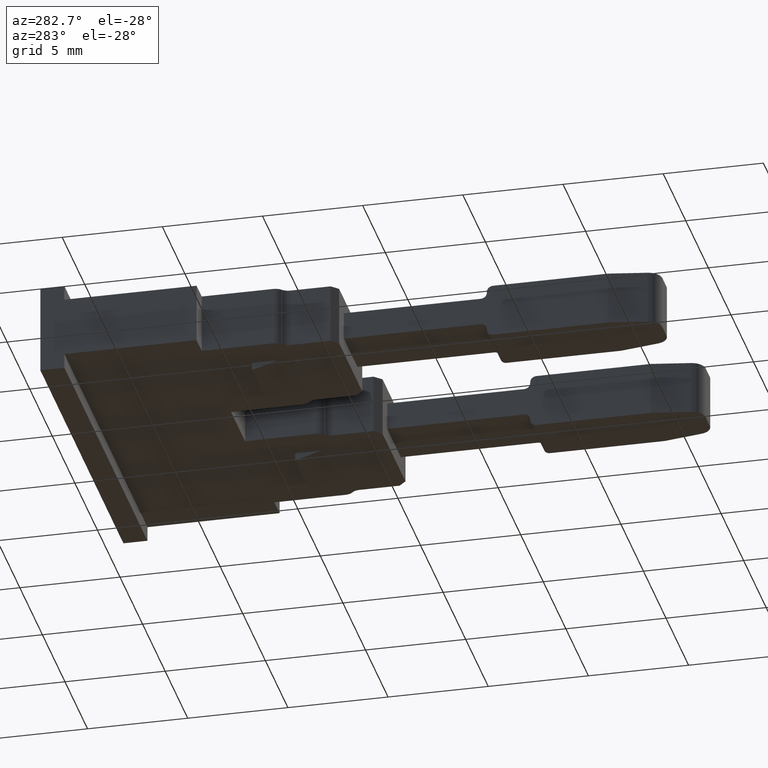
[diagram: clean part render]
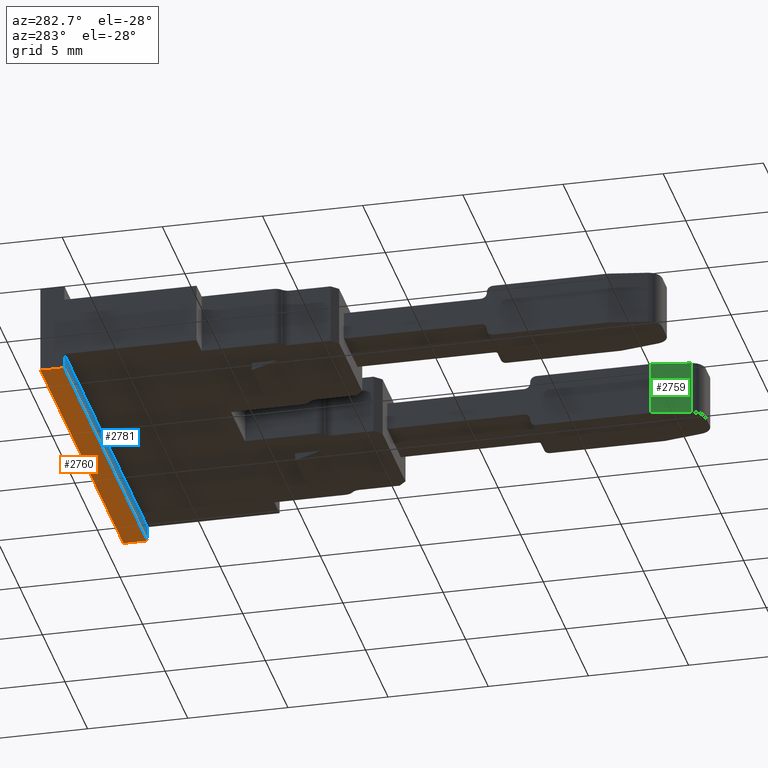
[diagram: same view with three faces highlighted in distinct colors, each labeled with its STEP entity id]
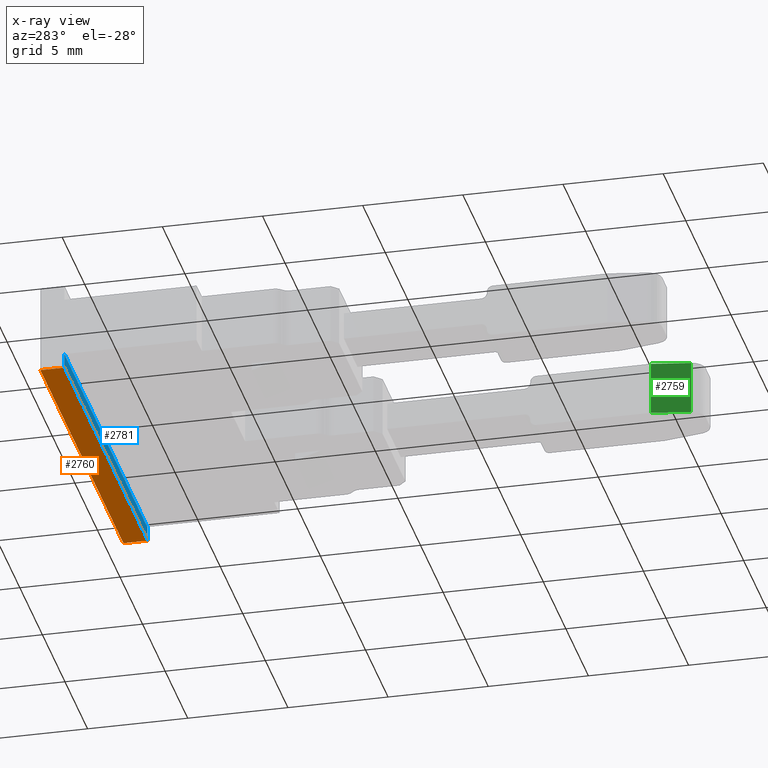
[diagram: x-ray of the same camera — body ghosted, the three highlighted faces saturated]
A machine part, auxiliary view with three faces highlighted in distinct colors.
The next image is the same camera in x-ray (body ghosted, the three faces saturated) — at least one of them is partly hidden behind the body in this view.
Their STEP definitions:

[orange] entity #2760 — the highlighted planar face has unit normal (0, 0, 1).
#22 = VECTOR ( 'NONE', #1079, 1000.000000000000000 ) ;
#32 = VECTOR ( 'NONE', #1054, 1000.000000000000000 ) ;
#34 = VECTOR ( 'NONE', #1126, 1000.000000000000000 ) ;
#78 = VECTOR ( 'NONE', #1228, 1000.000000000000000 ) ;
#244 = AXIS2_PLACEMENT_3D ( 'NONE', #701, #679, #688 ) ;
#679 = DIRECTION ( 'NONE',  ( 0.0000000000000000000, 0.0000000000000000000, 1.000000000000000000 ) ) ;
#681 = PLANE ( 'NONE',  #244 ) ;
#688 = DIRECTION ( 'NONE',  ( 1.000000000000000000, 0.0000000000000000000, -0.0000000000000000000 ) ) ;
#701 = CARTESIAN_POINT ( 'NONE',  ( 1139.194470802330000, 673.0878760720547700, -0.7499999999999997800 ) ) ;
#727 = FACE_OUTER_BOUND ( 'NONE', #2500, .T. ) ;
#1054 = DIRECTION ( 'NONE',  ( 1.000000000000000000, 0.0000000000000000000, 0.0000000000000000000 ) ) ;
#1068 = LINE ( 'NONE', #1088, #32 ) ;
#1071 = LINE ( 'NONE', #1077, #22 ) ;
#1077 = CARTESIAN_POINT ( 'NONE',  ( 1139.194470802330000, 673.0878760720547700, -0.7499999999999997800 ) ) ;
#1079 = DIRECTION ( 'NONE',  ( 0.0000000000000000000, -1.000000000000000000, -0.0000000000000000000 ) ) ;
#1082 = LINE ( 'NONE', #1135, #34 ) ;
#1088 = CARTESIAN_POINT ( 'NONE',  ( 1139.194470802330000, 674.2878760720548100, -0.7499999999999997800 ) ) ;
#1126 = DIRECTION ( 'NONE',  ( -0.0000000000000000000, 1.000000000000000000, 0.0000000000000000000 ) ) ;
#1135 = CARTESIAN_POINT ( 'NONE',  ( 1157.594465032600300, 673.0878760720547700, -0.7499999999999997800 ) ) ;
#1201 = CARTESIAN_POINT ( 'NONE',  ( 1139.194470802330000, 673.0878760720547700, -0.7499999999999997800 ) ) ;
#1227 = LINE ( 'NONE', #1201, #78 ) ;
#1228 = DIRECTION ( 'NONE',  ( 1.000000000000000000, 0.0000000000000000000, 0.0000000000000000000 ) ) ;
#1704 = VERTEX_POINT ( 'NONE', #2491 ) ;
#1715 = VERTEX_POINT ( 'NONE', #2380 ) ;
#1745 = VERTEX_POINT ( 'NONE', #2388 ) ;
#1751 = VERTEX_POINT ( 'NONE', #2360 ) ;
#1934 = ORIENTED_EDGE ( 'NONE', *, *, #2565, .F. ) ;
#1954 = ORIENTED_EDGE ( 'NONE', *, *, #2554, .T. ) ;
#1963 = ORIENTED_EDGE ( 'NONE', *, *, #2558, .F. ) ;
#1966 = ORIENTED_EDGE ( 'NONE', *, *, #2593, .F. ) ;
#2360 = CARTESIAN_POINT ( 'NONE',  ( 1157.594465032600300, 674.2878760720548100, -0.7499999999999997800 ) ) ;
#2380 = CARTESIAN_POINT ( 'NONE',  ( 1139.194470802330000, 673.0878760720547700, -0.7499999999999997800 ) ) ;
#2388 = CARTESIAN_POINT ( 'NONE',  ( 1139.194470802330000, 674.2878760720548100, -0.7499999999999997800 ) ) ;
#2491 = CARTESIAN_POINT ( 'NONE',  ( 1157.594465032600300, 673.0878760720547700, -0.7499999999999997800 ) ) ;
#2500 = EDGE_LOOP ( 'NONE', ( #1954, #1934, #1966, #1963 ) ) ;
#2554 = EDGE_CURVE ( 'NONE', #1745, #1751, #1068, .T. ) ;
#2558 = EDGE_CURVE ( 'NONE', #1745, #1715, #1071, .T. ) ;
#2565 = EDGE_CURVE ( 'NONE', #1704, #1751, #1082, .T. ) ;
#2593 = EDGE_CURVE ( 'NONE', #1715, #1704, #1227, .T. ) ;
#2760 = ADVANCED_FACE ( 'NONE', ( #727 ), #681, .F. ) ;

[blue] entity #2781 — the highlighted planar face has unit normal (0, -1, 0).
#3 = VECTOR ( 'NONE', #1108, 1000.000000000000000 ) ;
#66 = VECTOR ( 'NONE', #1110, 1000.000000000000000 ) ;
#78 = VECTOR ( 'NONE', #1228, 1000.000000000000000 ) ;
#234 = AXIS2_PLACEMENT_3D ( 'NONE', #828, #794, #809 ) ;
#329 = VECTOR ( 'NONE', #949, 1000.000000000000000 ) ;
#793 = FACE_OUTER_BOUND ( 'NONE', #2486, .T. ) ;
#794 = DIRECTION ( 'NONE',  ( 0.0000000000000000000, -1.000000000000000000, 0.0000000000000000000 ) ) ;
#809 = DIRECTION ( 'NONE',  ( 0.0000000000000000000, -0.0000000000000000000, -1.000000000000000000 ) ) ;
#828 = CARTESIAN_POINT ( 'NONE',  ( 1139.194470802330000, 673.0878760720547700, -0.7499999999999997800 ) ) ;
#835 = PLANE ( 'NONE',  #234 ) ;
#949 = DIRECTION ( 'NONE',  ( 0.0000000000000000000, -0.0000000000000000000, -1.000000000000000000 ) ) ;
#964 = CARTESIAN_POINT ( 'NONE',  ( 1139.194470802330000, 673.0878760720547700, -0.7499999999999997800 ) ) ;
#989 = LINE ( 'NONE', #964, #329 ) ;
#1091 = CARTESIAN_POINT ( 'NONE',  ( 1157.594465032600300, 673.0878760720547700, -0.7499999999999997800 ) ) ;
#1100 = CARTESIAN_POINT ( 'NONE',  ( 1146.994467408302400, 673.0878760720547700, 0.0000000000000000000 ) ) ;
#1108 = DIRECTION ( 'NONE',  ( 1.000000000000000000, -0.0000000000000000000, 0.0000000000000000000 ) ) ;
#1110 = DIRECTION ( 'NONE',  ( -0.0000000000000000000, 0.0000000000000000000, 1.000000000000000000 ) ) ;
#1119 = LINE ( 'NONE', #1100, #3 ) ;
#1133 = LINE ( 'NONE', #1091, #66 ) ;
#1201 = CARTESIAN_POINT ( 'NONE',  ( 1139.194470802330000, 673.0878760720547700, -0.7499999999999997800 ) ) ;
#1227 = LINE ( 'NONE', #1201, #78 ) ;
#1228 = DIRECTION ( 'NONE',  ( 1.000000000000000000, 0.0000000000000000000, 0.0000000000000000000 ) ) ;
#1700 = VERTEX_POINT ( 'NONE', #2363 ) ;
#1704 = VERTEX_POINT ( 'NONE', #2491 ) ;
#1715 = VERTEX_POINT ( 'NONE', #2380 ) ;
#1727 = VERTEX_POINT ( 'NONE', #2403 ) ;
#1938 = ORIENTED_EDGE ( 'NONE', *, *, #2567, .F. ) ;
#1955 = ORIENTED_EDGE ( 'NONE', *, *, #2820, .T. ) ;
#1970 = ORIENTED_EDGE ( 'NONE', *, *, #2569, .T. ) ;
#1987 = ORIENTED_EDGE ( 'NONE', *, *, #2593, .T. ) ;
#2363 = CARTESIAN_POINT ( 'NONE',  ( 1157.594465032600300, 673.0878760720547700, 0.0000000000000000000 ) ) ;
#2380 = CARTESIAN_POINT ( 'NONE',  ( 1139.194470802330000, 673.0878760720547700, -0.7499999999999997800 ) ) ;
#2403 = CARTESIAN_POINT ( 'NONE',  ( 1139.194470802330000, 673.0878760720547700, 0.0000000000000000000 ) ) ;
#2486 = EDGE_LOOP ( 'NONE', ( #1955, #1987, #1970, #1938 ) ) ;
#2491 = CARTESIAN_POINT ( 'NONE',  ( 1157.594465032600300, 673.0878760720547700, -0.7499999999999997800 ) ) ;
#2567 = EDGE_CURVE ( 'NONE', #1727, #1700, #1119, .T. ) ;
#2569 = EDGE_CURVE ( 'NONE', #1704, #1700, #1133, .T. ) ;
#2593 = EDGE_CURVE ( 'NONE', #1715, #1704, #1227, .T. ) ;
#2781 = ADVANCED_FACE ( 'NONE', ( #793 ), #835, .T. ) ;
#2820 = EDGE_CURVE ( 'NONE', #1727, #1715, #989, .T. ) ;

[green] entity #2759 — the highlighted planar face has unit normal (0.9848, 0.1736, 0).
#281 = AXIS2_PLACEMENT_3D ( 'NONE', #691, #724, #695 ) ;
#288 = VECTOR ( 'NONE', #529, 1000.000000000000000 ) ;
#303 = VECTOR ( 'NONE', #1611, 1000.000000000000100 ) ;
#315 = VECTOR ( 'NONE', #970, 1000.000000000000000 ) ;
#323 = VECTOR ( 'NONE', #1489, 1000.000000000000100 ) ;
#529 = DIRECTION ( 'NONE',  ( 5.202683950075619400E-014, 9.173720111080574800E-015, -1.000000000000000000 ) ) ;
#685 = PLANE ( 'NONE',  #281 ) ;
#691 = CARTESIAN_POINT ( 'NONE',  ( 1151.694434011691600, 646.6283161340937800, -8.894767489098113000 ) ) ;
#695 = DIRECTION ( 'NONE',  ( -0.1736478946976646700, 0.9848078029072824300, 0.0000000000000000000 ) ) ;
#724 = DIRECTION ( 'NONE',  ( 0.9848078029072824300, 0.1736478946976646700, 5.282943468478429100E-014 ) ) ;
#725 = FACE_OUTER_BOUND ( 'NONE', #2518, .T. ) ;
#969 = CARTESIAN_POINT ( 'NONE',  ( 1151.694434011691600, 646.6283161340937800, -8.894767489098113000 ) ) ;
#970 = DIRECTION ( 'NONE',  ( 5.364441115151316900E-014, 0.0000000000000000000, -1.000000000000000000 ) ) ;
#982 = LINE ( 'NONE', #969, #315 ) ;
#986 = LINE ( 'NONE', #1419, #288 ) ;
#1419 = CARTESIAN_POINT ( 'NONE',  ( 1152.033259543839200, 644.7067378249285000, -8.894767489098113000 ) ) ;
#1489 = DIRECTION ( 'NONE',  ( 0.1736478946976646700, -0.9848078029072824300, 9.334970462686607200E-015 ) ) ;
#1601 = LINE ( 'NONE', #1628, #303 ) ;
#1611 = DIRECTION ( 'NONE',  ( -0.1736478946976646700, 0.9848078029072824300, -9.321079137593324000E-015 ) ) ;
#1628 = CARTESIAN_POINT ( 'NONE',  ( 1152.033259543838800, 644.7067378249283800, 0.1522013187405819300 ) ) ;
#1644 = LINE ( 'NONE', #1645, #323 ) ;
#1645 = CARTESIAN_POINT ( 'NONE',  ( 1151.694434011690900, 646.6283161340937800, 2.847804784774841100 ) ) ;
#1718 = VERTEX_POINT ( 'NONE', #2356 ) ;
#1723 = VERTEX_POINT ( 'NONE', #2371 ) ;
#1744 = VERTEX_POINT ( 'NONE', #2373 ) ;
#1750 = VERTEX_POINT ( 'NONE', #2382 ) ;
#1877 = ORIENTED_EDGE ( 'NONE', *, *, #2854, .F. ) ;
#1915 = ORIENTED_EDGE ( 'NONE', *, *, #2827, .T. ) ;
#1919 = ORIENTED_EDGE ( 'NONE', *, *, #2832, .F. ) ;
#1927 = ORIENTED_EDGE ( 'NONE', *, *, #2841, .F. ) ;
#2356 = CARTESIAN_POINT ( 'NONE',  ( 1151.694434011691100, 646.6283161340937800, 0.1522013187405634200 ) ) ;
#2371 = CARTESIAN_POINT ( 'NONE',  ( 1152.033259543838500, 644.7067378249283800, 2.847804784774855300 ) ) ;
#2373 = CARTESIAN_POINT ( 'NONE',  ( 1152.033259543838800, 644.7067378249283800, 0.1522013187405768000 ) ) ;
#2382 = CARTESIAN_POINT ( 'NONE',  ( 1151.694434011690900, 646.6283161340937800, 2.847804784774841100 ) ) ;
#2518 = EDGE_LOOP ( 'NONE', ( #1919, #1877, #1915, #1927 ) ) ;
#2759 = ADVANCED_FACE ( 'NONE', ( #725 ), #685, .F. ) ;
#2827 = EDGE_CURVE ( 'NONE', #1750, #1718, #982, .T. ) ;
#2832 = EDGE_CURVE ( 'NONE', #1723, #1744, #986, .T. ) ;
#2841 = EDGE_CURVE ( 'NONE', #1744, #1718, #1601, .T. ) ;
#2854 = EDGE_CURVE ( 'NONE', #1750, #1723, #1644, .T. ) ;